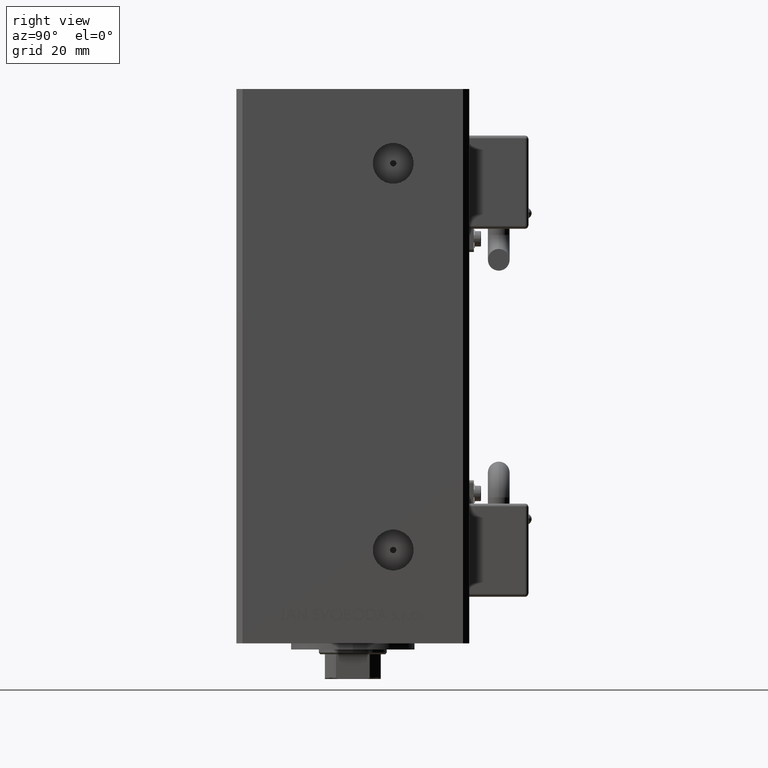
[diagram: clean part render]
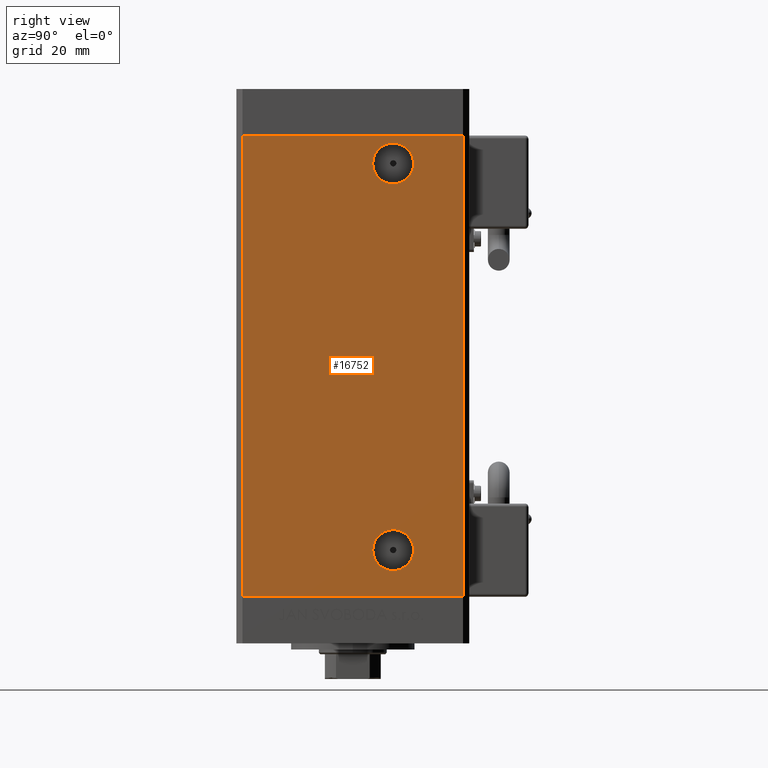
[diagram: same view with one face highlighted and labeled with its STEP entity id]
A machine part, right view. The second image highlights one B-rep face of the part: STEP entity #16752.
In plain terms, the highlighted planar face has unit normal (1, -0, 0).
Its self-contained STEP definition (entity closure, byte-faithful):
#600 = VECTOR ( 'NONE', #46330, 1000.000000000000000 ) ;
#1515 = VECTOR ( 'NONE', #5541, 1000.000000000000000 ) ;
#1937 = EDGE_CURVE ( 'NONE', #15074, #24604, #48744, .T. ) ;
#2307 = LINE ( 'NONE', #26862, #13548 ) ;
#3110 = CARTESIAN_POINT ( 'NONE',  ( 42.49999999999998579, -35.50000000000000711, 148.5000000000000000 ) ) ;
#3179 = VERTEX_POINT ( 'NONE', #30364 ) ;
#4025 = EDGE_CURVE ( 'NONE', #25472, #3179, #52218, .T. ) ;
#4614 = ORIENTED_EDGE ( 'NONE', *, *, #35416, .F. ) ;
#4619 = CARTESIAN_POINT ( 'NONE',  ( 42.50000000000000711, 35.50000000000001421, 148.5000000000000000 ) ) ;
#5118 = ORIENTED_EDGE ( 'NONE', *, *, #30012, .F. ) ;
#5121 = VERTEX_POINT ( 'NONE', #32432 ) ;
#5315 = CARTESIAN_POINT ( 'NONE',  ( 42.50000000000000711, 35.50000000000001421, 148.5000000000000000 ) ) ;
#5541 = DIRECTION ( 'NONE',  ( -2.931927001650941360E-16, -1.000000000000000000, 0.000000000000000000 ) ) ;
#6220 = VERTEX_POINT ( 'NONE', #38807 ) ;
#6527 = DIRECTION ( 'NONE',  ( -0.000000000000000000, -0.000000000000000000, -1.000000000000000000 ) ) ;
#6768 = CARTESIAN_POINT ( 'NONE',  ( 42.49999999999999289, 19.58000000000001251, 139.4999999999999716 ) ) ;
#7479 = EDGE_CURVE ( 'NONE', #30647, #27278, #2307, .T. ) ;
#8869 = EDGE_CURVE ( 'NONE', #24604, #15074, #38879, .T. ) ;
#10863 = EDGE_LOOP ( 'NONE', ( #40453, #5118 ) ) ;
#11429 = ORIENTED_EDGE ( 'NONE', *, *, #8869, .F. ) ;
#12024 = CARTESIAN_POINT ( 'NONE',  ( 42.50000000000000711, 35.50000000000001421, 148.5000000000000000 ) ) ;
#12529 = DIRECTION ( 'NONE',  ( 1.000000000000000000, -2.275047181608927644E-16, 0.000000000000000000 ) ) ;
#12710 = ORIENTED_EDGE ( 'NONE', *, *, #7479, .F. ) ;
#13191 = LINE ( 'NONE', #29319, #1515 ) ;
#13548 = VECTOR ( 'NONE', #6527, 1000.000000000000000 ) ;
#15074 = VERTEX_POINT ( 'NONE', #51748 ) ;
#16226 = DIRECTION ( 'NONE',  ( 0.000000000000000000, 1.000000000000000000, 0.000000000000000000 ) ) ;
#16752 = ADVANCED_FACE ( 'NONE', ( #43721, #19151, #32106 ), #48217, .T. ) ;
#18745 = ORIENTED_EDGE ( 'NONE', *, *, #1937, .F. ) ;
#19151 = FACE_BOUND ( 'NONE', #10863, .T. ) ;
#19223 = DIRECTION ( 'NONE',  ( -0.000000000000000000, -0.000000000000000000, -1.000000000000000000 ) ) ;
#20475 = LINE ( 'NONE', #4619, #600 ) ;
#22512 = AXIS2_PLACEMENT_3D ( 'NONE', #34542, #38244, #30058 ) ;
#24077 = CARTESIAN_POINT ( 'NONE',  ( 42.50000000000000711, 35.50000000000001421, 0.000000000000000000 ) ) ;
#24176 = DIRECTION ( 'NONE',  ( 2.931927001650941360E-16, 1.000000000000000000, 0.000000000000000000 ) ) ;
#24604 = VERTEX_POINT ( 'NONE', #49072 ) ;
#25472 = VERTEX_POINT ( 'NONE', #6768 ) ;
#26862 = CARTESIAN_POINT ( 'NONE',  ( 42.50000000000000711, 35.50000000000001421, 148.5000000000000000 ) ) ;
#26968 = DIRECTION ( 'NONE',  ( 1.000000000000000000, -2.275047181608927644E-16, 0.000000000000000000 ) ) ;
#27278 = VERTEX_POINT ( 'NONE', #24077 ) ;
#28224 = ORIENTED_EDGE ( 'NONE', *, *, #33817, .T. ) ;
#28972 = CARTESIAN_POINT ( 'NONE',  ( 42.49999999999999289, 13.00000000000000000, 14.99999999999998579 ) ) ;
#29319 = CARTESIAN_POINT ( 'NONE',  ( 42.50000000000000711, 35.50000000000001421, 0.000000000000000000 ) ) ;
#30012 = EDGE_CURVE ( 'NONE', #3179, #25472, #35138, .T. ) ;
#30058 = DIRECTION ( 'NONE',  ( 0.000000000000000000, 1.000000000000000000, 0.000000000000000000 ) ) ;
#30364 = CARTESIAN_POINT ( 'NONE',  ( 42.49999999999999289, 6.419999999999983942, 139.4999999999999716 ) ) ;
#30647 = VERTEX_POINT ( 'NONE', #5315 ) ;
#31127 = AXIS2_PLACEMENT_3D ( 'NONE', #38862, #26968, #51807 ) ;
#32106 = FACE_OUTER_BOUND ( 'NONE', #46017, .T. ) ;
#32349 = CARTESIAN_POINT ( 'NONE',  ( 42.49999999999999289, 13.00000000000000000, 14.99999999999998579 ) ) ;
#32432 = CARTESIAN_POINT ( 'NONE',  ( 42.49999999999998579, -35.50000000000000711, 0.000000000000000000 ) ) ;
#33817 = EDGE_CURVE ( 'NONE', #30647, #6220, #20475, .T. ) ;
#34542 = CARTESIAN_POINT ( 'NONE',  ( 42.49999999999999289, 13.00000000000000000, 139.4999999999999716 ) ) ;
#35138 = CIRCLE ( 'NONE', #22512, 6.580000000000014282 ) ;
#35416 = EDGE_CURVE ( 'NONE', #27278, #5121, #13191, .T. ) ;
#35677 = AXIS2_PLACEMENT_3D ( 'NONE', #12024, #39497, #24176 ) ;
#35808 = EDGE_CURVE ( 'NONE', #6220, #5121, #43267, .T. ) ;
#36167 = EDGE_LOOP ( 'NONE', ( #11429, #18745 ) ) ;
#38244 = DIRECTION ( 'NONE',  ( 1.000000000000000000, -2.275047181608927644E-16, 0.000000000000000000 ) ) ;
#38807 = CARTESIAN_POINT ( 'NONE',  ( 42.49999999999998579, -35.50000000000000711, 148.5000000000000000 ) ) ;
#38862 = CARTESIAN_POINT ( 'NONE',  ( 42.49999999999999289, 13.00000000000000000, 139.4999999999999716 ) ) ;
#38879 = CIRCLE ( 'NONE', #49005, 6.580000000000008065 ) ;
#39497 = DIRECTION ( 'NONE',  ( 1.000000000000000000, -2.931927001650941360E-16, 0.000000000000000000 ) ) ;
#40453 = ORIENTED_EDGE ( 'NONE', *, *, #4025, .F. ) ;
#40858 = DIRECTION ( 'NONE',  ( 0.000000000000000000, 1.000000000000000000, 0.000000000000000000 ) ) ;
#43267 = LINE ( 'NONE', #3110, #47052 ) ;
#43721 = FACE_BOUND ( 'NONE', #36167, .T. ) ;
#44553 = DIRECTION ( 'NONE',  ( 1.000000000000000000, -2.275047181608927644E-16, 0.000000000000000000 ) ) ;
#46017 = EDGE_LOOP ( 'NONE', ( #4614, #12710, #28224, #51041 ) ) ;
#46330 = DIRECTION ( 'NONE',  ( -2.931927001650941360E-16, -1.000000000000000000, 0.000000000000000000 ) ) ;
#47052 = VECTOR ( 'NONE', #19223, 1000.000000000000000 ) ;
#48217 = PLANE ( 'NONE',  #35677 ) ;
#48744 = CIRCLE ( 'NONE', #50438, 6.580000000000008065 ) ;
#49005 = AXIS2_PLACEMENT_3D ( 'NONE', #32349, #12529, #16226 ) ;
#49072 = CARTESIAN_POINT ( 'NONE',  ( 42.49999999999999289, 19.58000000000000540, 14.99999999999998579 ) ) ;
#50438 = AXIS2_PLACEMENT_3D ( 'NONE', #28972, #44553, #40858 ) ;
#51041 = ORIENTED_EDGE ( 'NONE', *, *, #35808, .T. ) ;
#51748 = CARTESIAN_POINT ( 'NONE',  ( 42.49999999999999289, 6.419999999999993712, 14.99999999999998579 ) ) ;
#51807 = DIRECTION ( 'NONE',  ( 0.000000000000000000, 1.000000000000000000, 0.000000000000000000 ) ) ;
#52218 = CIRCLE ( 'NONE', #31127, 6.580000000000014282 ) ;